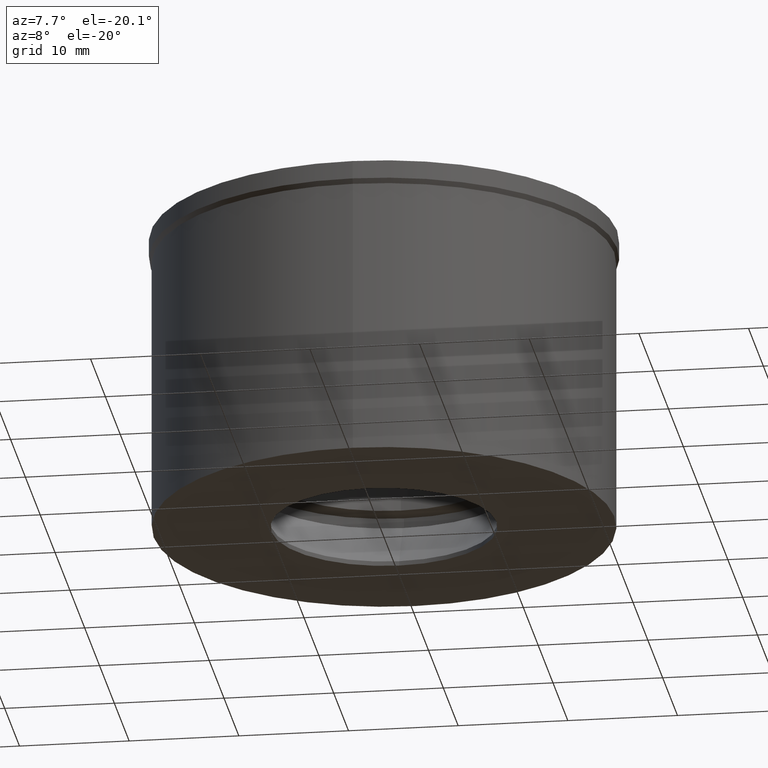
[diagram: clean part render]
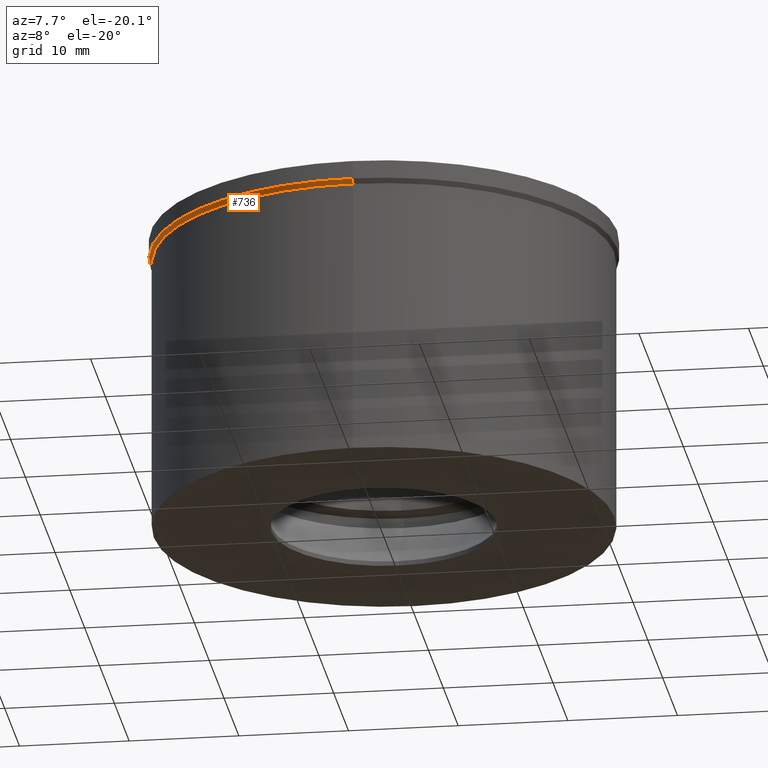
[diagram: same view with one face highlighted and labeled with its STEP entity id]
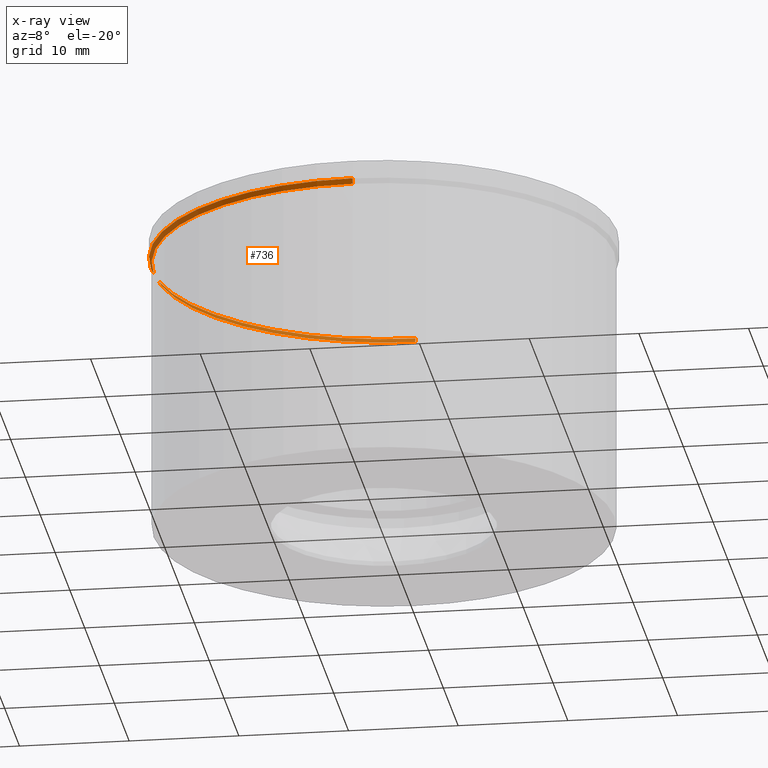
[diagram: x-ray of the same camera — body ghosted, the highlighted face saturated]
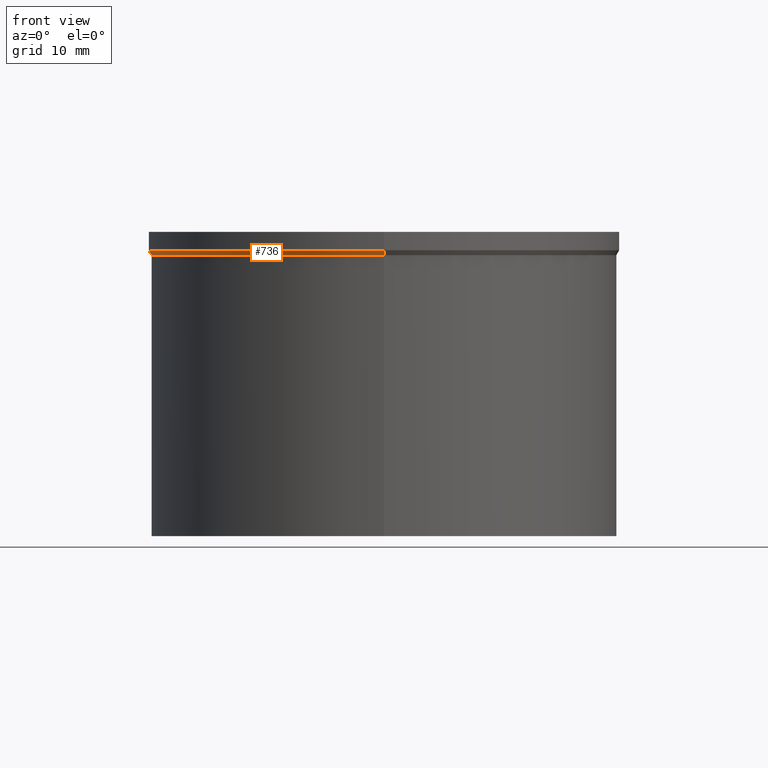
[diagram: same view with one face highlighted and labeled with its STEP entity id]
A machine part, auxiliary view. The second image highlights one B-rep face of the part: STEP entity #736.
The next image is the same camera in x-ray: the body ghosted, the highlighted face saturated — about 40% of this face is hidden behind the body in this view.
A second angle (front view) of the same face is appended — the face is thin or edge-on in the first view.
In plain terms, the highlighted conical surface has half-angle 30 deg.
Its self-contained STEP definition (entity closure, byte-faithful):
#292=CARTESIAN_POINT('',(0.E0,0.E0,-1.666987298108E0));
#293=DIRECTION('',(0.E0,0.E0,1.E0));
#294=DIRECTION('',(0.E0,1.E0,0.E0));
#295=AXIS2_PLACEMENT_3D('',#292,#293,#294);
#300=DIRECTION('',(0.E0,5.000000000001E-1,-8.660254037844E-1));
#301=VECTOR('',#300,4.999999999998E-1);
#302=CARTESIAN_POINT('',(0.E0,-2.125E1,-1.666987298108E0));
#303=LINE('',#302,#301);
#307=CARTESIAN_POINT('',(0.E0,0.E0,-2.1E0));
#308=DIRECTION('',(0.E0,0.E0,-1.E0));
#309=DIRECTION('',(0.E0,-1.E0,0.E0));
#310=AXIS2_PLACEMENT_3D('',#307,#308,#309);
#315=DIRECTION('',(0.E0,-5.000000000001E-1,-8.660254037844E-1));
#316=VECTOR('',#315,4.999999999998E-1);
#317=CARTESIAN_POINT('',(0.E0,2.125E1,-1.666987298108E0));
#318=LINE('',#317,#316);
#432=CARTESIAN_POINT('',(0.E0,2.1E1,-2.1E0));
#433=VERTEX_POINT('',#432);
#434=CARTESIAN_POINT('',(0.E0,-2.1E1,-2.1E0));
#435=VERTEX_POINT('',#434);
#436=CARTESIAN_POINT('',(0.E0,2.125E1,-1.666987298108E0));
#437=VERTEX_POINT('',#436);
#438=CARTESIAN_POINT('',(0.E0,-2.125E1,-1.666987298108E0));
#439=VERTEX_POINT('',#438);
#722=CARTESIAN_POINT('',(0.E0,0.E0,-1.883493649054E0));
#723=DIRECTION('',(0.E0,0.E0,1.E0));
#724=DIRECTION('',(0.E0,1.E0,0.E0));
#725=AXIS2_PLACEMENT_3D('',#722,#723,#724);
#726=CONICAL_SURFACE('',#725,2.1125E1,3.E1);
#728=ORIENTED_EDGE('',*,*,#727,.F.);
#730=ORIENTED_EDGE('',*,*,#729,.T.);
#732=ORIENTED_EDGE('',*,*,#731,.T.);
#733=ORIENTED_EDGE('',*,*,#715,.T.);
#734=EDGE_LOOP('',(#728,#730,#732,#733));
#735=FACE_OUTER_BOUND('',#734,.F.);
#296=CIRCLE('',#295,2.125E1);
#311=CIRCLE('',#310,2.1E1);
#715=EDGE_CURVE('',#435,#433,#311,.T.);
#727=EDGE_CURVE('',#437,#433,#318,.T.);
#729=EDGE_CURVE('',#437,#439,#296,.T.);
#731=EDGE_CURVE('',#439,#435,#303,.T.);
#736=ADVANCED_FACE('',(#735),#726,.T.);